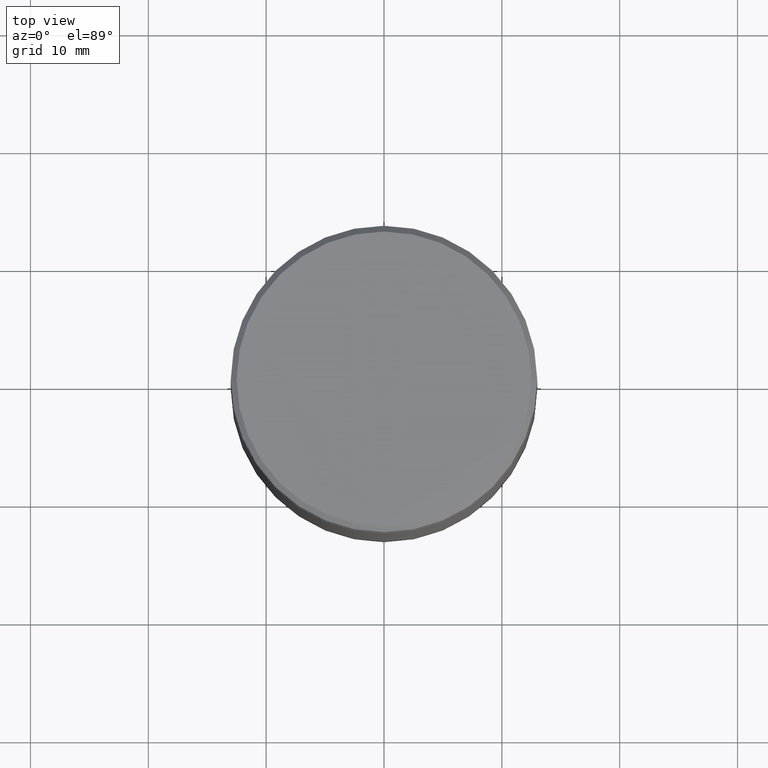
[diagram: clean part render]
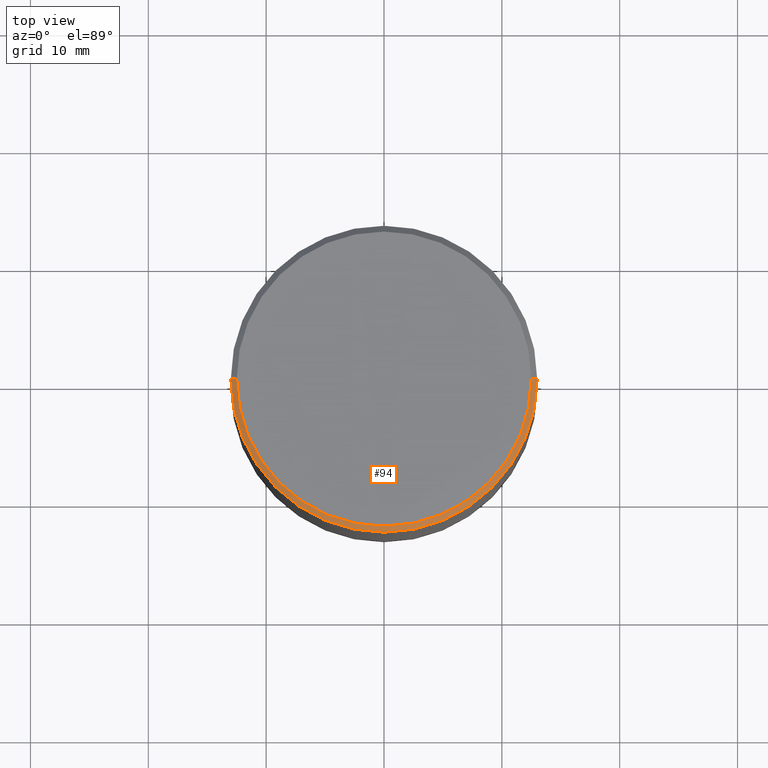
[diagram: same view with one face highlighted and labeled with its STEP entity id]
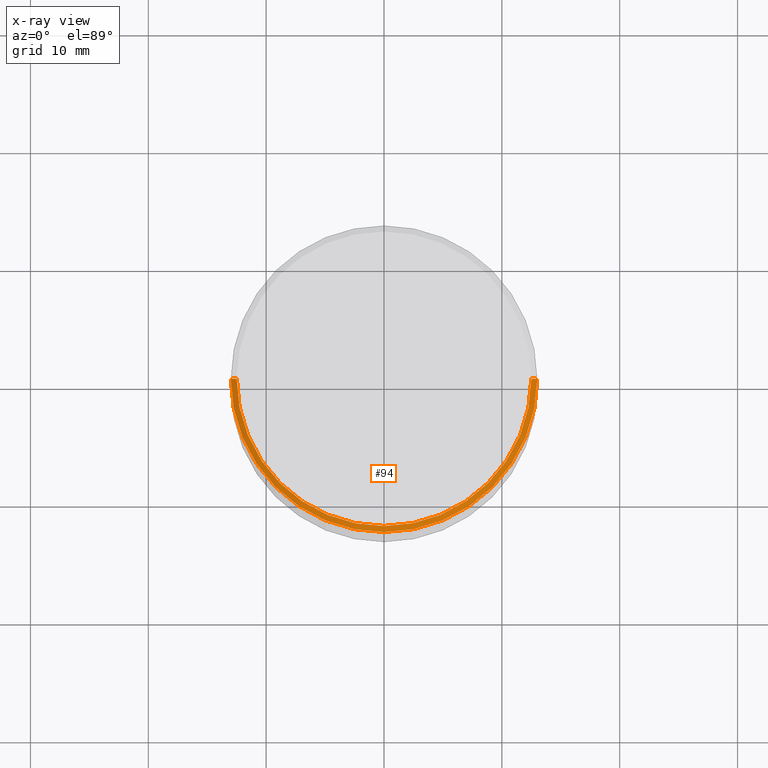
[diagram: x-ray of the same camera — body ghosted, the highlighted face saturated]
A machine part, top view. The second image highlights one B-rep face of the part: STEP entity #94.
The next image is the same camera in x-ray: the body ghosted, the highlighted face saturated — about 0% of this face is hidden behind the body in this view.
In plain terms, the highlighted conical surface has half-angle 45 deg.
Its self-contained STEP definition (entity closure, byte-faithful):
#38 = EDGE_LOOP ( 'NONE', ( #157, #475, #384, #64 ) ) ;
#57 = VERTEX_POINT ( 'NONE', #78 ) ;
#60 = CARTESIAN_POINT ( 'NONE',  ( 0.000000000000000000, 0.000000000000000000, 0.000000000000000000 ) ) ;
#64 = ORIENTED_EDGE ( 'NONE', *, *, #113, .F. ) ;
#68 = CONICAL_SURFACE ( 'NONE', #380, 12.50000000000000355, 0.7853981633974430610 ) ;
#78 = CARTESIAN_POINT ( 'NONE',  ( 13.00000000000000000, 0.000000000000000000, -0.5000000000000004441 ) ) ;
#80 = VECTOR ( 'NONE', #400, 999.9999999999998863 ) ;
#87 = AXIS2_PLACEMENT_3D ( 'NONE', #60, #513, #503 ) ;
#94 = ADVANCED_FACE ( 'NONE', ( #417 ), #68, .T. ) ;
#113 = EDGE_CURVE ( 'NONE', #57, #508, #330, .T. ) ;
#131 = VERTEX_POINT ( 'NONE', #421 ) ;
#134 = DIRECTION ( 'NONE',  ( 0.000000000000000000, 0.000000000000000000, -1.000000000000000000 ) ) ;
#143 = CARTESIAN_POINT ( 'NONE',  ( -13.00000000000000000, 1.592040838891559095E-15, -0.5000000000000004441 ) ) ;
#147 = VERTEX_POINT ( 'NONE', #294 ) ;
#157 = ORIENTED_EDGE ( 'NONE', *, *, #536, .F. ) ;
#186 = DIRECTION ( 'NONE',  ( 0.000000000000000000, 0.000000000000000000, -1.000000000000000000 ) ) ;
#213 = CARTESIAN_POINT ( 'NONE',  ( 0.000000000000000000, 0.000000000000000000, 0.000000000000000000 ) ) ;
#259 = CIRCLE ( 'NONE', #87, 12.50000000000000355 ) ;
#282 = VECTOR ( 'NONE', #298, 999.9999999999998863 ) ;
#294 = CARTESIAN_POINT ( 'NONE',  ( 12.50000000000000355, 1.561424668912875506E-15, 0.000000000000000000 ) ) ;
#298 = DIRECTION ( 'NONE',  ( 0.7071067811865439090, 8.659560562354888485E-17, -0.7071067811865512365 ) ) ;
#314 = LINE ( 'NONE', #532, #80 ) ;
#321 = EDGE_CURVE ( 'NONE', #131, #147, #259, .T. ) ;
#330 = CIRCLE ( 'NONE', #547, 13.00000000000000000 ) ;
#333 = DIRECTION ( 'NONE',  ( -1.000000000000000000, 0.000000000000000000, 0.000000000000000000 ) ) ;
#380 = AXIS2_PLACEMENT_3D ( 'NONE', #213, #134, #333 ) ;
#384 = ORIENTED_EDGE ( 'NONE', *, *, #418, .T. ) ;
#400 = DIRECTION ( 'NONE',  ( -0.7071067811865439090, 0.000000000000000000, -0.7071067811865512365 ) ) ;
#417 = FACE_OUTER_BOUND ( 'NONE', #38, .T. ) ;
#418 = EDGE_CURVE ( 'NONE', #131, #508, #314, .T. ) ;
#421 = CARTESIAN_POINT ( 'NONE',  ( -12.50000000000000355, 0.000000000000000000, 0.000000000000000000 ) ) ;
#429 = CARTESIAN_POINT ( 'NONE',  ( 12.50000000000000355, 1.530808498934191916E-15, 0.000000000000000000 ) ) ;
#475 = ORIENTED_EDGE ( 'NONE', *, *, #321, .F. ) ;
#503 = DIRECTION ( 'NONE',  ( 1.000000000000000000, 0.000000000000000000, 0.000000000000000000 ) ) ;
#508 = VERTEX_POINT ( 'NONE', #143 ) ;
#513 = DIRECTION ( 'NONE',  ( -0.000000000000000000, -0.000000000000000000, 1.000000000000000000 ) ) ;
#520 = DIRECTION ( 'NONE',  ( 1.000000000000000000, 0.000000000000000000, 0.000000000000000000 ) ) ;
#532 = CARTESIAN_POINT ( 'NONE',  ( -12.50000000000000355, 0.000000000000000000, 0.000000000000000000 ) ) ;
#536 = EDGE_CURVE ( 'NONE', #147, #57, #567, .T. ) ;
#547 = AXIS2_PLACEMENT_3D ( 'NONE', #569, #186, #520 ) ;
#567 = LINE ( 'NONE', #429, #282 ) ;
#569 = CARTESIAN_POINT ( 'NONE',  ( 0.000000000000000000, 0.000000000000000000, -0.5000000000000004441 ) ) ;